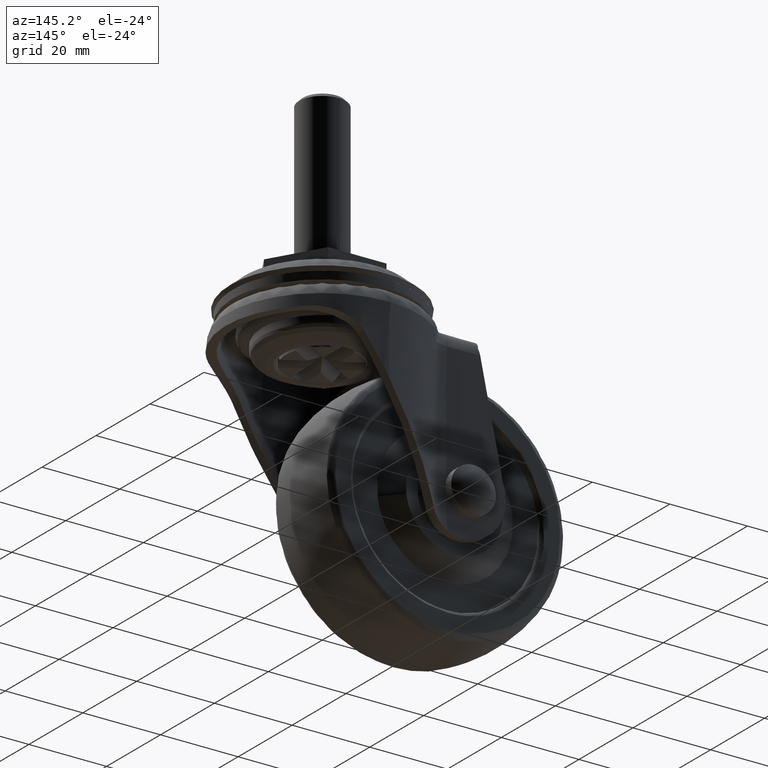
[diagram: clean part render]
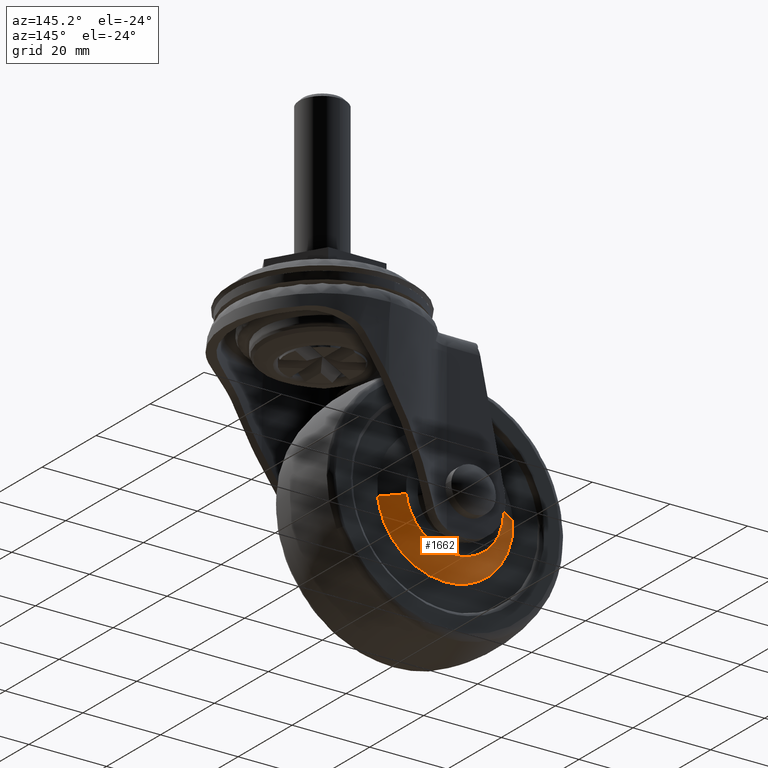
[diagram: same view with one face highlighted and labeled with its STEP entity id]
A machine part, auxiliary view. The second image highlights one B-rep face of the part: STEP entity #1662.
In plain terms, the highlighted face is a freeform B-spline surface patch.
Its self-contained STEP definition (entity closure, byte-faithful):
#1499=CARTESIAN_POINT('',(-12.585909280327380,12.999999999952140,-47.975702860450902));
#1500=VERTEX_POINT('',#1499);
#1518=CARTESIAN_POINT('',(-37.478164216088153,12.999999999946700,-45.736902781343723));
#1519=VERTEX_POINT('',#1518);
#1533=CARTESIAN_POINT('',(-42.467259158933970,9.500070020715990,-45.431756662611491));
#1534=VERTEX_POINT('',#1533);
#1535=CARTESIAN_POINT('',(-37.478164216088153,12.999999999946700,-45.736902781343723));
#1536=CARTESIAN_POINT('',(-42.467259158933970,9.500070020715990,-45.431756662611491));
#1537=QUASI_UNIFORM_CURVE('',1,(#1535,#1536),.UNSPECIFIED.,.F.,.U.);
#1538=EDGE_CURVE('',#1519,#1534,#1537,.T.);
#1555=CARTESIAN_POINT('',(-7.622432589582899,9.500070020723285,-48.565687303395777));
#1556=VERTEX_POINT('',#1555);
#1572=CARTESIAN_POINT('',(-12.585909280327380,12.999999999952140,-47.975702860450902));
#1573=CARTESIAN_POINT('',(-7.622432589582899,9.500070020723285,-48.565687303395777));
#1574=QUASI_UNIFORM_CURVE('',1,(#1572,#1573),.UNSPECIFIED.,.F.,.U.);
#1575=EDGE_CURVE('',#1500,#1556,#1574,.T.);
#1580=CARTESIAN_POINT('',(-37.353436842473137,13.087498249481150,-45.744531434850821));
#1581=CARTESIAN_POINT('',(-38.109005407622313,13.087498249481149,-58.097968277323950));
#1582=CARTESIAN_POINT('',(-25.755568565149179,13.087498249481150,-58.853536842473140));
#1583=CARTESIAN_POINT('',(-14.089557988362698,13.087498249481149,-59.567060616052672));
#1584=CARTESIAN_POINT('',(-12.709996197604793,13.087498249481149,-47.960953248867128));
#1585=CARTESIAN_POINT('',(-42.595104716813502,9.410384315035952,-45.423937293697541));
#1586=CARTESIAN_POINT('',(-43.671267423115957,9.410384315035952,-63.019042010511029));
#1587=CARTESIAN_POINT('',(-26.076162706302458,9.410384315035952,-64.095204716813498));
#1588=CARTESIAN_POINT('',(-9.460165041565263,9.410384315035952,-65.111482670403177));
#1589=CARTESIAN_POINT('',(-7.495243499388146,9.410384315035952,-48.580805654424879));
#1597=(BOUNDED_SURFACE()B_SPLINE_SURFACE(2,1,((#1580,#1585),(#1581,#1586),(#1582,#1587),(#1583,#1588),(#1584,#1589)),.UNSPECIFIED.,.F.,.F.,.U.)B_SPLINE_SURFACE_WITH_KNOTS((3,2,3),(2,2),(0.0,29.207000964607580,57.245721890630861),(0.0,6.410852485834051),.UNSPECIFIED.)GEOMETRIC_REPRESENTATION_ITEM()RATIONAL_B_SPLINE_SURFACE(((1.0,1.0),(0.707106781186548,0.707106781186548),(1.0,1.0),(0.718822509939086,0.718822509939086),(0.977505800795127,0.977505800795127)))REPRESENTATION_ITEM('')SURFACE());
#1598=CARTESIAN_POINT('',(-25.0,13.0,-59.001582000000013));
#1599=VERTEX_POINT('',#1598);
#1600=CARTESIAN_POINT('',(-25.0,13.0,-59.001582000000013));
#1601=CARTESIAN_POINT('',(-13.896502151856810,12.999999999999998,-59.001582000000013));
#1602=CARTESIAN_POINT('',(-12.585909280327378,12.999999999952140,-47.975702860450895));
#1610=(BOUNDED_CURVE()B_SPLINE_CURVE(2,(#1600,#1601,#1602),.UNSPECIFIED.,.F.,.U.)B_SPLINE_CURVE_WITH_KNOTS((3,3),(0.0,0.229562473502096),.UNSPECIFIED.)CURVE()GEOMETRIC_REPRESENTATION_ITEM()RATIONAL_B_SPLINE_CURVE((1.0,0.731050832868772,0.956026754161331))REPRESENTATION_ITEM(''));
#1611=EDGE_CURVE('',#1599,#1500,#1610,.T.);
#1612=ORIENTED_EDGE('',*,*,#1611,.T.);
#1613=ORIENTED_EDGE('',*,*,#1575,.T.);
#1614=CARTESIAN_POINT('',(-25.0,9.500070020754128,-64.0));
#1615=VERTEX_POINT('',#1614);
#1616=CARTESIAN_POINT('',(-25.0,9.500070020754128,-64.0));
#1617=CARTESIAN_POINT('',(-9.457034613881520,9.500070020754128,-64.000000000000014));
#1618=CARTESIAN_POINT('',(-7.622432589582899,9.500070020723285,-48.565687303395784));
#1626=(BOUNDED_CURVE()B_SPLINE_CURVE(2,(#1616,#1617,#1618),.UNSPECIFIED.,.F.,.U.)B_SPLINE_CURVE_WITH_KNOTS((3,3),(0.0,0.229562473509405),.UNSPECIFIED.)CURVE()GEOMETRIC_REPRESENTATION_ITEM()RATIONAL_B_SPLINE_CURVE((1.0,0.731050832860210,0.956026754175657))REPRESENTATION_ITEM(''));
#1627=EDGE_CURVE('',#1615,#1556,#1626,.T.);
#1628=ORIENTED_EDGE('',*,*,#1627,.F.);
#1629=CARTESIAN_POINT('',(-42.467259158933970,9.500070020715990,-45.431756662611491));
#1630=CARTESIAN_POINT('',(-42.499899999999997,9.500070020754128,-45.965429697170819));
#1631=CARTESIAN_POINT('',(-42.499899999999997,9.500070020754128,-46.500100000000003));
#1632=CARTESIAN_POINT('',(-42.499900000000004,9.500070020754130,-64.0));
#1633=CARTESIAN_POINT('',(-25.0,9.500070020754128,-64.0));
#1641=(BOUNDED_CURVE()B_SPLINE_CURVE(2,(#1629,#1630,#1631,#1632,#1633),.UNSPECIFIED.,.F.,.U.)B_SPLINE_CURVE_WITH_KNOTS((3,2,3),(0.739332962234478,0.750000000000000,1.0),.UNSPECIFIED.)CURVE()GEOMETRIC_REPRESENTATION_ITEM()RATIONAL_B_SPLINE_CURVE((0.976072041657148,0.987502787894606,1.0,0.707106781186547,1.0))REPRESENTATION_ITEM(''));
#1642=EDGE_CURVE('',#1534,#1615,#1641,.T.);
#1643=ORIENTED_EDGE('',*,*,#1642,.F.);
#1644=ORIENTED_EDGE('',*,*,#1538,.F.);
#1645=CARTESIAN_POINT('',(-37.478164216088146,12.999999999946697,-45.736902781343723));
#1646=CARTESIAN_POINT('',(-37.501482000000003,13.0,-46.118145179040610));
#1647=CARTESIAN_POINT('',(-37.501482000000003,13.0,-46.500100000000003));
#1648=CARTESIAN_POINT('',(-37.501482000000003,13.0,-59.001582000000006));
#1649=CARTESIAN_POINT('',(-25.0,13.0,-59.001582000000013));
#1657=(BOUNDED_CURVE()B_SPLINE_CURVE(2,(#1645,#1646,#1647,#1648,#1649),.UNSPECIFIED.,.F.,.U.)B_SPLINE_CURVE_WITH_KNOTS((3,2,3),(0.739332962227301,0.750000000000000,1.0),.UNSPECIFIED.)CURVE()GEOMETRIC_REPRESENTATION_ITEM()RATIONAL_B_SPLINE_CURVE((0.976072041641768,0.987502787886198,1.0,0.707106781186547,1.0))REPRESENTATION_ITEM(''));
#1658=EDGE_CURVE('',#1519,#1599,#1657,.T.);
#1659=ORIENTED_EDGE('',*,*,#1658,.T.);
#1660=EDGE_LOOP('',(#1612,#1613,#1628,#1643,#1644,#1659));
#1661=FACE_OUTER_BOUND('',#1660,.T.);
#1662=ADVANCED_FACE('',(#1661),#1597,.T.);